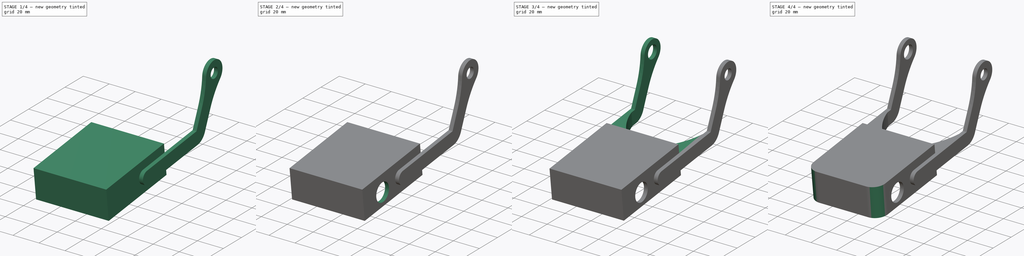
[diagram: build sequence overview — one tinted view per stage of 4, left to right]
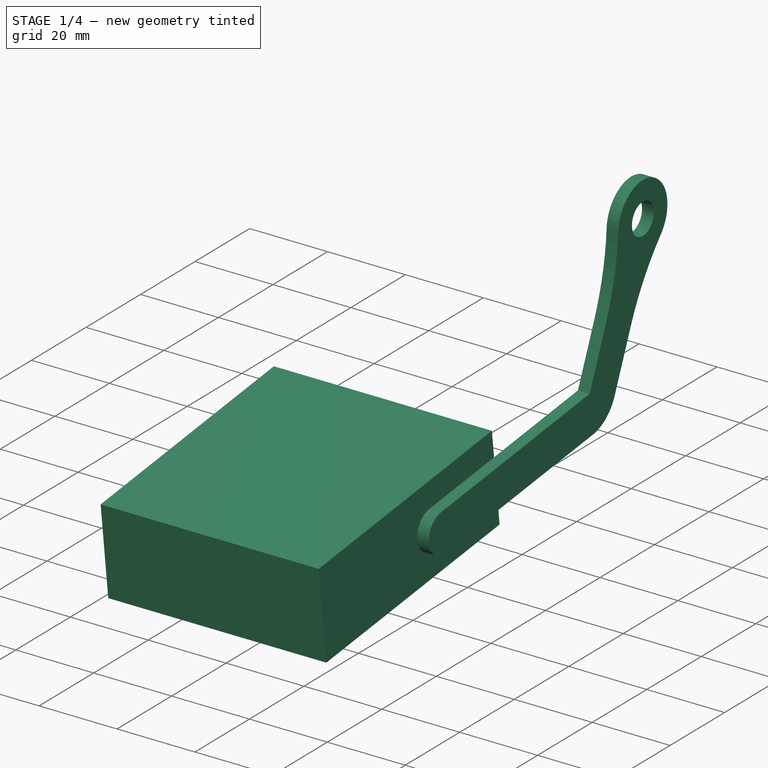
[diagram: stage 1 of 4 — iso view after this stage's code; geometry added in this stage tinted green]
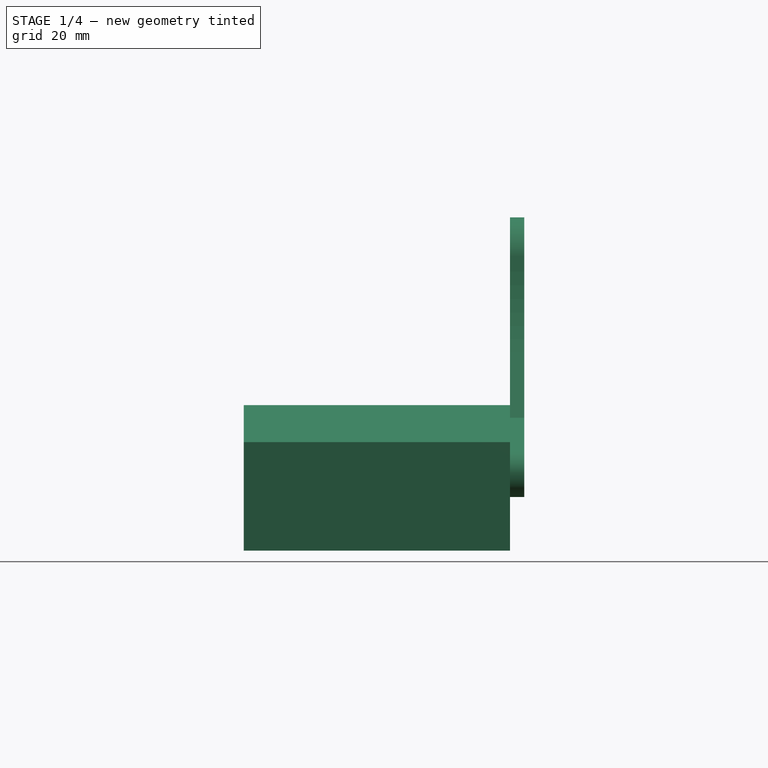
[diagram: stage 1 of 4 — front view after this stage's code; geometry added in this stage tinted green]
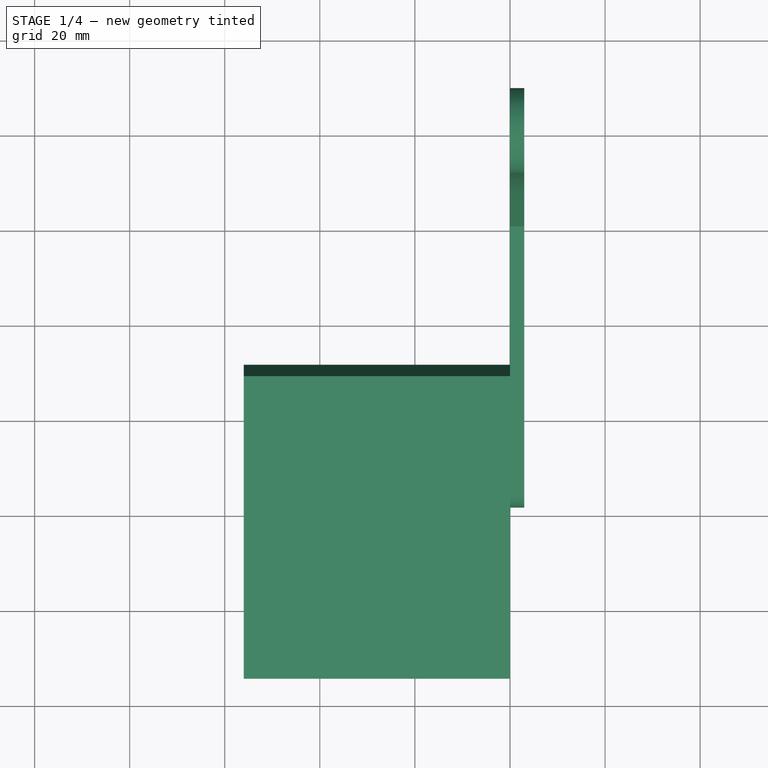
[diagram: stage 1 of 4 — top view after this stage's code; geometry added in this stage tinted green]
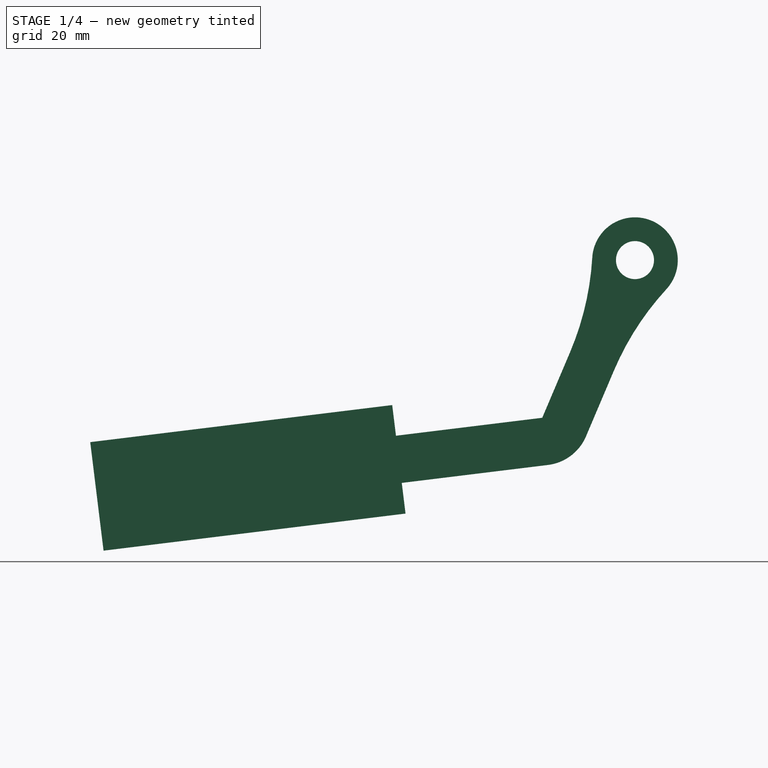
[diagram: stage 1 of 4 — right view after this stage's code; geometry added in this stage tinted green]
FCSTD DOCUMENT  (FreeCAD 0.18R4 (GitTag))
Label: Plecho
License: All rights reserved
LicenseURL: http://en.wikipedia.org/wiki/All_rights_reserved
objects: Sketcher::SketchObject×8, PartDesign::Pad×5, PartDesign::Pocket×3, PartDesign::Fillet×2, PartDesign::Body×1
note: 27 computed .brp shape members not serialized (recipe doc carries the construction recipe); baked Part::Feature solids carry a one-line shape summary decoded from their .brp

FEATURE [Sketcher::SketchObject] Sketch019
  MapMode = 5
  Placement = pos=(-56,7.5e-14,-5e-14) rot=(0.57735,0.57735,-0.57735;4.18879rad)
  sketch-geometry (13):
    g0: ArcOfCircle CenterX=0 CenterY=0 CenterZ=0 NormalX=0 NormalY=0 NormalZ=1 AngleXU=0 Radius=9 StartAngle=3.20085 EndAngle=7.02678
    g1: Circle CenterX=0 CenterY=0 CenterZ=0 NormalX=0 NormalY=0 NormalZ=1 AngleXU=0 Radius=5
    g2: LineSegment StartX=-13.6486 StartY=19.3576 StartZ=0 EndX=-19.5096 EndY=33.1651 EndZ=0
    g3: LineSegment StartX=-4.44356 StartY=23.2649 StartZ=0 EndX=-10.3045 EndY=37.0725 EndZ=0
    g4: ArcOfCircle CenterX=-68.8789 CenterY=-4.0863 CenterZ=0 NormalX=0 NormalY=0 NormalZ=1 AngleXU=0 Radius=60 StartAngle=0.0592563 EndAngle=0.401426
    g5: ArcOfCircle CenterX=50.7867 CenterY=46.7088 CenterZ=0 NormalX=0 NormalY=0 NormalZ=1 AngleXU=0 Radius=60 StartAngle=3.54302 EndAngle=3.88519
    g6: ArcOfCircle CenterX=-19.5096 CenterY=33.1651 CenterZ=0 NormalX=0 NormalY=0 NormalZ=1 AngleXU=0 Radius=10 StartAngle=0.401426 EndAngle=1.44862
    g7: LineSegment StartX=-19.5096 StartY=33.1651 StartZ=0 EndX=-74.0996 EndY=39.868 EndZ=0
    g8: LineSegment StartX=-18.2909 StartY=43.0906 StartZ=0 EndX=-72.8809 EndY=49.7934 EndZ=0
    g9: ArcOfCircle CenterX=-73.4903 CenterY=44.8307 CenterZ=0 NormalX=0 NormalY=0 NormalZ=1 AngleXU=0 Radius=5 StartAngle=1.44862 EndAngle=4.59022
    g10: LineSegment [constr] StartX=-10.3045 StartY=37.0725 StartZ=0 EndX=-19.5096 EndY=33.1651 EndZ=0
    g11: LineSegment [constr] StartX=-4.44356 StartY=23.2649 StartZ=0 EndX=-13.6486 EndY=19.3576 EndZ=0
    g12: LineSegment [constr] StartX=-72.8809 StartY=49.7934 StartZ=0 EndX=-74.0996 EndY=39.868 EndZ=0
  constraints (30):
    c: Coincident(g0,g-1)
    c: Radius(g0) = 9
    c: Radius(g1) = 5
    c: Coincident(g1,g0)
    c: Coincident(g6,g2)
    c: Coincident(g7,g2)
    c: Tangent(g9,g8) = -1.5708
    c: Tangent(g9,g7) = 1.5708
    c: Tangent(g8,g6) = -1.5708
    c: Tangent(g6,g3) = -1.5708
    c: Radius(g6) = 10
    c: Radius(g5) = 60
    c: Radius(g4) = 60
    c: Coincident(g11,g2)
    c: Coincident(g11,g3)
    c: Coincident(g10,g2)
    c: Coincident(g10,g3)
    c: Parallel(g11,g10)
    c: Parallel(g3,g2)
    c: Distance(g2) = 15
    c: Tangent(g4,g2) = -1.5708
    c: Tangent(g5,g3) = 1.5708
    c: Tangent(g0,g4) = 1.5708
    c: Tangent(g0,g5) = 1.5708
    c: Angle(g3,g-2) = 2.74017
    c: Coincident(g12,g8)
    c: Coincident(g12,g7)
    c: PointOnObject(g9,g12)
    c: Angle(g7,g2) = 2.0944
    c: Distance(g7) = 55
FEATURE [Sketcher::SketchObject] Sketch012
  MapMode = 5
  Placement = pos=(0,0,0) rot=(0.57735,0.57735,0.57735;2.0944rad)
  Support = -> [YZ_Plane004]
  sketch-geometry (14):
    g0: LineSegment StartX=-13.6486 StartY=-19.3576 StartZ=0 EndX=-19.5096 EndY=-33.1651 EndZ=0
    g1: LineSegment [constr] StartX=-19.5096 StartY=-33.1651 StartZ=0 EndX=-10.3045 EndY=-37.0725 EndZ=0
    g2: LineSegment StartX=-10.3045 StartY=-37.0725 StartZ=0 EndX=-4.44356 EndY=-23.2649 EndZ=0
    g3: ArcOfCircle CenterX=0 CenterY=0 CenterZ=0 NormalX=0 NormalY=0 NormalZ=1 AngleXU=0 Radius=9 StartAngle=5.53959 EndAngle=9.36552
    g4: Circle CenterX=0 CenterY=0 CenterZ=0 NormalX=0 NormalY=0 NormalZ=1 AngleXU=0 Radius=4
    g5: ArcOfCircle CenterX=50.7867 CenterY=-46.7088 CenterZ=0 NormalX=0 NormalY=0 NormalZ=1 AngleXU=0 Radius=60 StartAngle=2.398 EndAngle=2.74017
    g6: ArcOfCircle CenterX=-68.8789 CenterY=4.0863 CenterZ=0 NormalX=0 NormalY=0 NormalZ=1 AngleXU=0 Radius=60 StartAngle=5.88176 EndAngle=6.22393
    g7: LineSegment [constr] StartX=-4.44356 StartY=-23.2649 StartZ=0 EndX=-13.6486 EndY=-19.3576 EndZ=0
    g8: LineSegment StartX=-19.5096 StartY=-33.1651 StartZ=0 EndX=-74.0996 EndY=-39.868 EndZ=0
    g9: LineSegment StartX=-72.8809 StartY=-49.7934 StartZ=0 EndX=-18.2909 EndY=-43.0906 EndZ=0
    g10: LineSegment [constr] StartX=-18.2909 StartY=-43.0906 StartZ=0 EndX=-19.5096 EndY=-33.1651 EndZ=0
    g11: ArcOfCircle CenterX=-19.5096 CenterY=-33.1651 CenterZ=0 NormalX=0 NormalY=0 NormalZ=1 AngleXU=0 Radius=10 StartAngle=4.83456 EndAngle=5.88176
    g12: ArcOfCircle CenterX=-73.4903 CenterY=-44.8307 CenterZ=0 NormalX=0 NormalY=0 NormalZ=1 AngleXU=0 Radius=5 StartAngle=1.69297 EndAngle=4.83456
    g13: LineSegment [constr] StartX=-74.0996 StartY=-39.868 StartZ=0 EndX=-72.8809 EndY=-49.7934 EndZ=0
  constraints (35):
    c: Coincident(g0,g1)
    c: Coincident(g1,g2)
    c: Radius(g3) = 9
    c: Distance(g1,g0) = 10
    c: Perpendicular(g1,g2)
    c: Perpendicular(g1,g0)
    c: Coincident(g4,g3)
    c: Radius(g4) = 4
    c: Tangent(g3,g5) = 1.5708
    c: Tangent(g2,g5) = 1.5708
    c: Tangent(g3,g6) = 1.5708
    c: Tangent(g0,g6) = 1.5708
    c: Radius(g6) = 60
    c: Radius(g5) = 60
    c: Coincident(g7,g2)
    c: Coincident(g7,g0)
    c: Parallel(g7,g1)
    c: Coincident(g9,g10)
    c: Coincident(g10,g8)
    c: Equal(g8,g9)
    c: Perpendicular(g9,g10)
    c: Coincident(g8,g0)
    c: Angle(g0,g8) = 2.0944
    c: Distance(g2,g1) = 15
    c: Coincident(g11,g0)
    c: Coincident(g11,g1)
    c: Coincident(g11,g9)
    c: Angle(g0,g-2) = 0.401426
    c: Radius(g12) = 5
    c: Coincident(g13,g9)
    c: Coincident(g12,g9)
    c: Tangent(g8,g12) = -1.5708
    c: Coincident(g13,g8)
    c: Distance(g9,g9) = 55
    c: Coincident(g-1,g3)
FEATURE [PartDesign::Pad] Pad005
  Length = 3
  Length2 = 100
  Placement = pos=(0,0,0) rot=(0.57735,0.57735,0.57735;2.0944rad)
  Profile = -> Sketch012
  Type = 0
FEATURE [Sketcher::SketchObject] Sketch013
  ExternalGeometry = -> [Pad005]
  MapMode = 5
  Placement = pos=(0,0,0) rot=(0.57735,0.57735,-0.57735;4.18879rad)
  Support = -> [Pad005]
  sketch-geometry (4):
    g0: LineSegment StartX=-111.791 StartY=61.1197 StartZ=0 EndX=-48.2677 EndY=53.3201 EndZ=0
    g1: LineSegment StartX=-48.2677 StartY=53.3201 StartZ=0 EndX=-51.0707 EndY=30.4915 EndZ=0
    g2: LineSegment StartX=-51.0707 StartY=30.4915 StartZ=0 EndX=-114.594 EndY=38.2912 EndZ=0
    g3: LineSegment StartX=-114.594 StartY=38.2912 StartZ=0 EndX=-111.791 EndY=61.1197 EndZ=0
  constraints (12):
    c: Coincident(g0,g1)
    c: Coincident(g1,g2)
    c: Coincident(g2,g3)
    c: Coincident(g3,g0)
    c: Perpendicular(g1,g0)
    c: Distance(g1) = 23
    c: Equal(g1,g3)
    c: Equal(g0,g2)
    c: Distance(g2) = 64
    c: Parallel(g2,g-4)
    c: Distance(g1,g-4) = 6.5
    c: Distance(g-4,g3) = 40
FEATURE [PartDesign::Pad] Pad006
  BaseFeature = -> Pad005
  Length = 56
  Length2 = 100
  Placement = pos=(0,0,0) rot=(0.57735,0.57735,0.57735;2.0944rad)
  Profile = -> Sketch013
  Type = 0
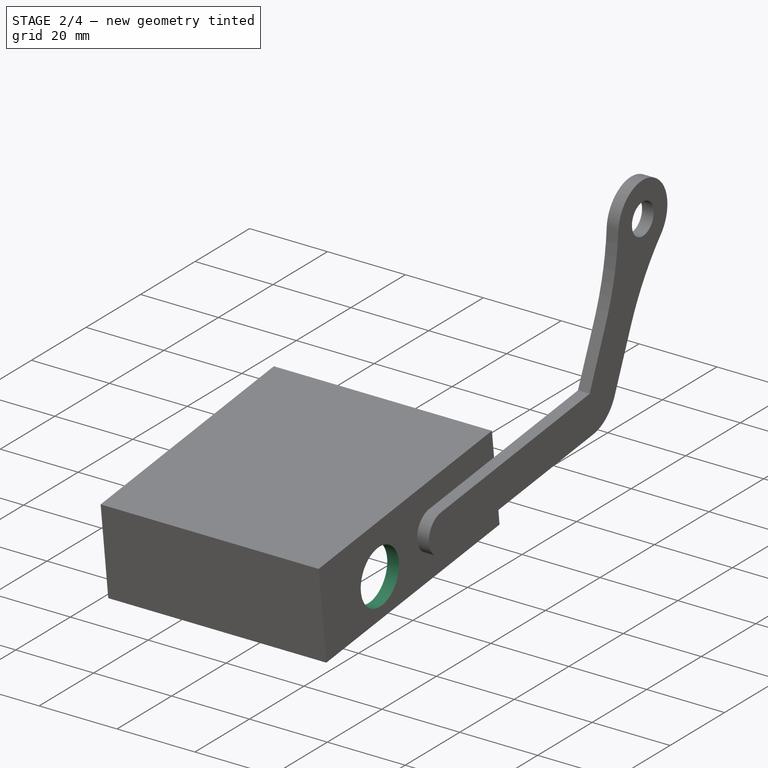
[diagram: stage 2 of 4 — iso view after this stage's code; geometry added in this stage tinted green]
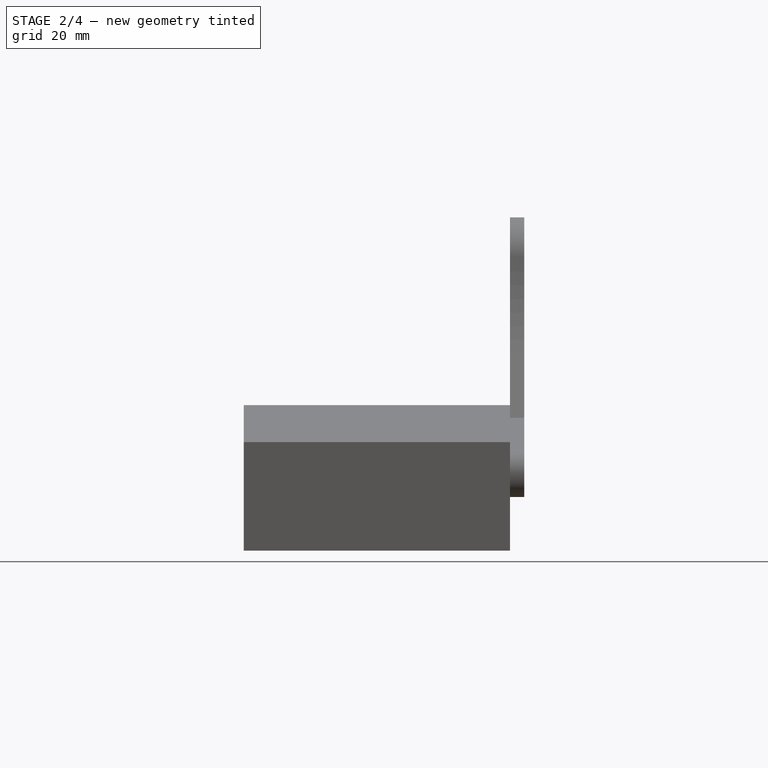
[diagram: stage 2 of 4 — front view after this stage's code; geometry added in this stage tinted green]
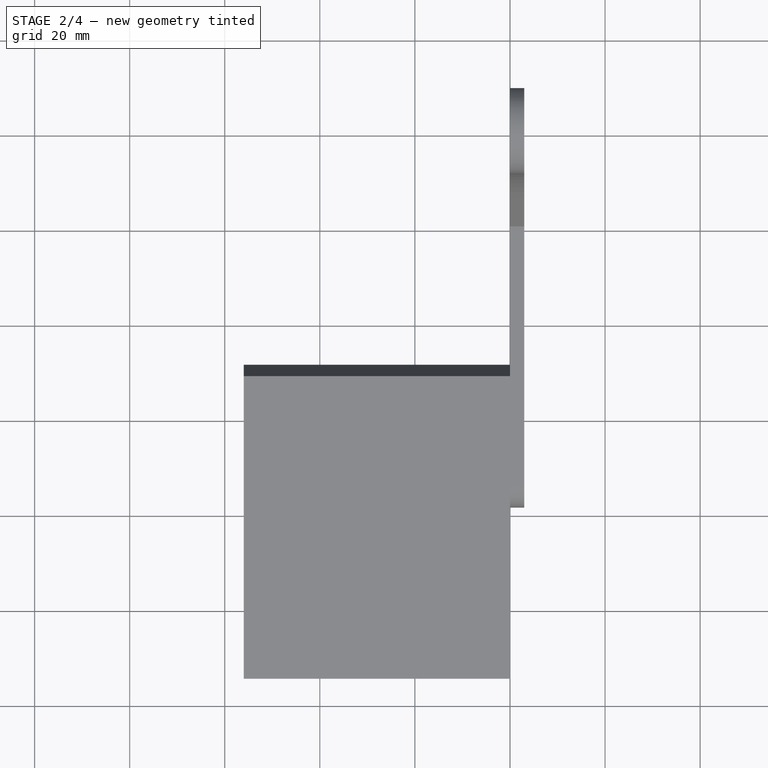
[diagram: stage 2 of 4 — top view after this stage's code; geometry added in this stage tinted green]
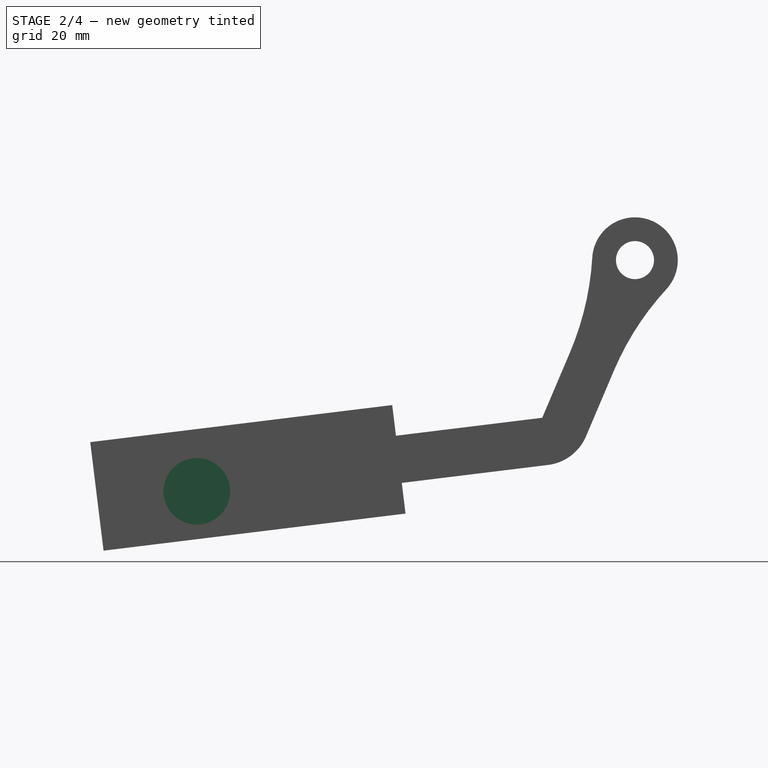
[diagram: stage 2 of 4 — right view after this stage's code; geometry added in this stage tinted green]
FEATURE [Sketcher::SketchObject] Sketch015
  ExternalGeometry = -> [Pad006]
  MapMode = 5
  Placement = pos=(2.45e-14,5.73277,-46.6897) rot=(0.706446,0.706446,0.043208;3.22796rad)
  Support = -> [Pad006]
  sketch-geometry (12):
    g0: LineSegment StartX=-115.406 StartY=-3 StartZ=0 EndX=-57.406 EndY=-3 EndZ=0
    g1: LineSegment StartX=-57.406 StartY=-3 StartZ=0 EndX=-57.406 EndY=-10 EndZ=0
    g2: LineSegment StartX=-57.406 StartY=-53 StartZ=0 EndX=-115.406 EndY=-53 EndZ=0
    g3: LineSegment StartX=-115.406 StartY=-53 StartZ=0 EndX=-115.406 EndY=-13 EndZ=0
    g4: LineSegment StartX=-115.406 StartY=-10 StartZ=0 EndX=-107.606 EndY=-10 EndZ=0
    g5: LineSegment StartX=-107.606 StartY=-10 StartZ=0 EndX=-107.606 EndY=-13 EndZ=0
    g6: LineSegment StartX=-107.606 StartY=-13 StartZ=0 EndX=-115.406 EndY=-13 EndZ=0
    g7: LineSegment StartX=-66.406 StartY=-10 StartZ=0 EndX=-57.406 EndY=-10 EndZ=0
    g8: LineSegment StartX=-57.406 StartY=-13 StartZ=0 EndX=-66.406 EndY=-13 EndZ=0
    g9: LineSegment StartX=-66.406 StartY=-13 StartZ=0 EndX=-66.406 EndY=-10 EndZ=0
    g10: LineSegment StartX=-57.406 StartY=-13 StartZ=0 EndX=-57.406 EndY=-53 EndZ=0
    g11: LineSegment StartX=-115.406 StartY=-10 StartZ=0 EndX=-115.406 EndY=-3 EndZ=0
  constraints (34):
    c: Coincident(g10,g2)
    c: Coincident(g2,g3)
    c: Coincident(g11,g0)
    c: Horizontal(g0)
    c: Horizontal(g2)
    c: Vertical(g1)
    c: Vertical(g3)
    c: DistanceX(g-3,g0) = 3
    c: DistanceY(g0,g-3) = 3
    c: DistanceX(g10,g-4) = 3
    c: DistanceY(g-4,g10) = 3
    c: Coincident(g0,g1)
    c: Coincident(g4,g5)
    c: Coincident(g5,g6)
    c: Horizontal(g4)
    c: Horizontal(g6)
    c: Vertical(g5)
    c: Coincident(g8,g9)
    c: Coincident(g9,g7)
    c: Horizontal(g7)
    c: Horizontal(g8)
    c: Vertical(g9)
    c: Coincident(g1,g7)
    c: Tangent(g1,g10)
    c: Coincident(g8,g10)
    c: DistanceY(g9,g9) = 3
    c: DistanceX(g7,g7) = 9
    c: DistanceY(g5,g5) = 3
    c: Coincident(g11,g4)
    c: Tangent(g3,g11)
    c: Coincident(g3,g6)
    c: DistanceX(g4,g4) = 7.8
    c: DistanceY(g3,g0) = 10
    c: DistanceY(g8,g0) = 10
FEATURE [PartDesign::Pocket] Pocket007
  BaseFeature = -> Pad006
  Length = 20
  Length2 = 100
  Placement = pos=(0,0,0) rot=(0.57735,0.57735,0.57735;2.0944rad)
  Profile = -> Sketch015
  Type = 0
FEATURE [Sketcher::SketchObject] Sketch016
  ExternalGeometry = -> [Pocket007]
  MapMode = 5
  Placement = pos=(1.27e-14,0,0) rot=(0.57735,0.57735,0.57735;2.0944rad)
  Support = -> [Pocket007]
  sketch-geometry (1):
    g0: Circle CenterX=-92.1658 CenterY=-48.635 CenterZ=0 NormalX=0 NormalY=0 NormalZ=1 AngleXU=0 Radius=7
  constraints (3):
    c: Distance(g0,g-4) = 21
    c: Distance(g0,g-3) = 10
    c: Radius(g0) = 7
FEATURE [PartDesign::Pocket] Pocket008
  BaseFeature = -> Pocket007
  Length = 3
  Length2 = 100
  Placement = pos=(0,0,0) rot=(0.57735,0.57735,0.57735;2.0944rad)
  Profile = -> Sketch016
  Type = 0
FEATURE [Sketcher::SketchObject] Sketch018
  ExternalGeometry = -> [Pocket008]
  MapMode = 5
  Placement = pos=(-13,7e-15,-1.5e-14) rot=(0.57735,0.57735,-0.57735;4.18879rad)
  sketch-geometry (4):
    g0: Circle CenterX=-57.4789 CenterY=39.8422 CenterZ=0 NormalX=0 NormalY=0 NormalZ=1 AngleXU=0 Radius=2.1
    g1: Circle CenterX=-56.382 CenterY=48.7751 CenterZ=0 NormalX=0 NormalY=0 NormalZ=1 AngleXU=0 Radius=2.1
    g2: Circle CenterX=-107.404 CenterY=45.9722 CenterZ=0 NormalX=0 NormalY=0 NormalZ=1 AngleXU=0 Radius=2.1
    g3: Circle CenterX=-106.307 CenterY=54.9052 CenterZ=0 NormalX=0 NormalY=0 NormalZ=1 AngleXU=0 Radius=2.1
  constraints (12):
    c: Radius(g3) = 2.1
    c: Radius(g2) = 2.1
    c: Radius(g0) = 2.1
    c: Radius(g1) = 2.1
    c: Distance(g0,g2) = 50.3
    c: Distance(g3,g1) = 50.3
    c: Distance(g1,g-5) = 5.5
    c: Distance(g0,g-5) = 14.5
    c: Distance(g3,g-5) = 5.5
    c: Distance(g2,g-5) = 14.5
    c: Distance(g1,g-3) = 4.5
    c: Distance(g0,g-3) = 4.5
FEATURE [PartDesign::Pocket] Pocket010
  BaseFeature = -> Pocket008
  Length = 3
  Length2 = 100
  Placement = pos=(0,0,0) rot=(0.57735,0.57735,0.57735;2.0944rad)
  Profile = -> Sketch018
  Type = 0
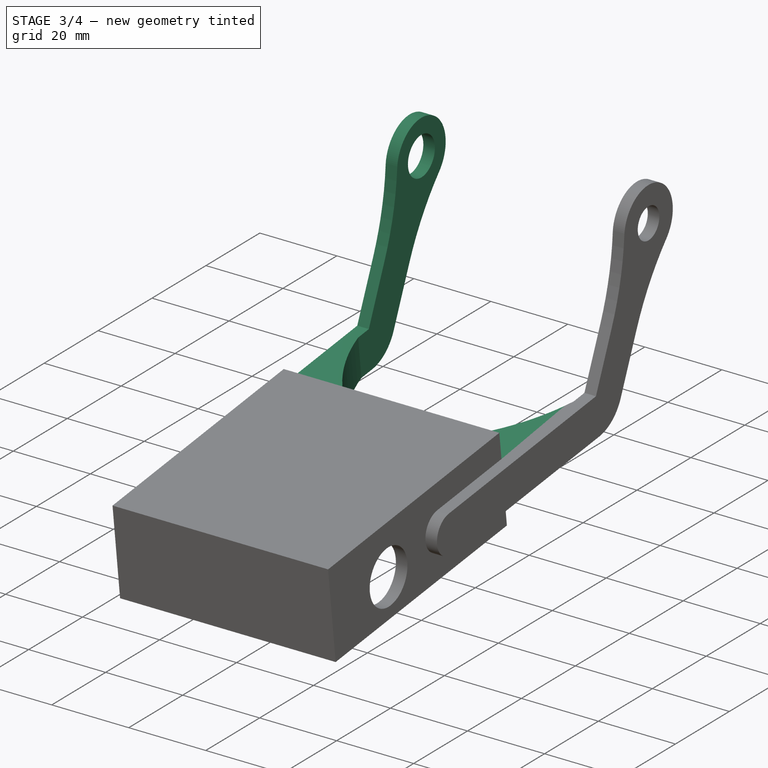
[diagram: stage 3 of 4 — iso view after this stage's code; geometry added in this stage tinted green]
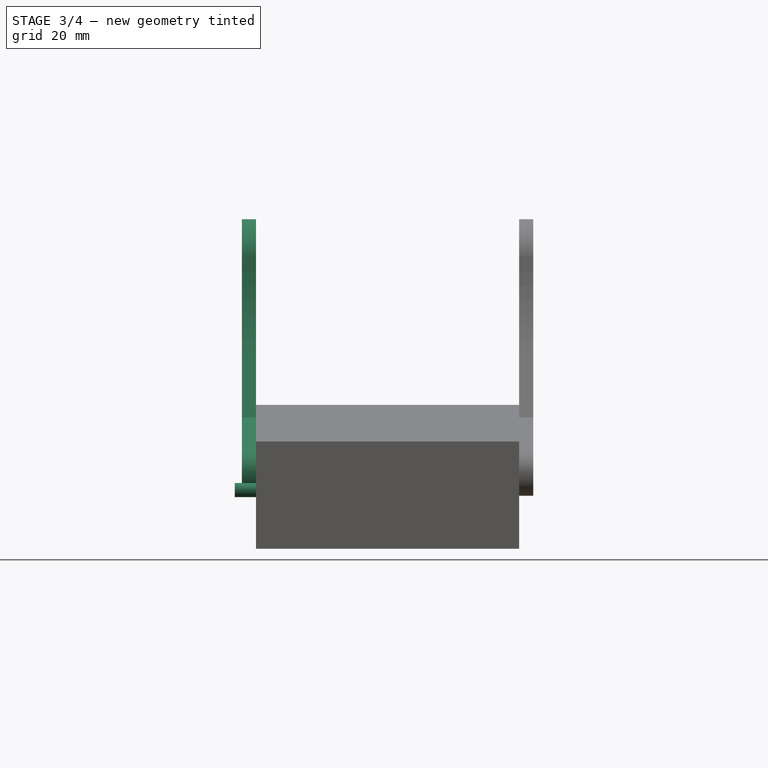
[diagram: stage 3 of 4 — front view after this stage's code; geometry added in this stage tinted green]
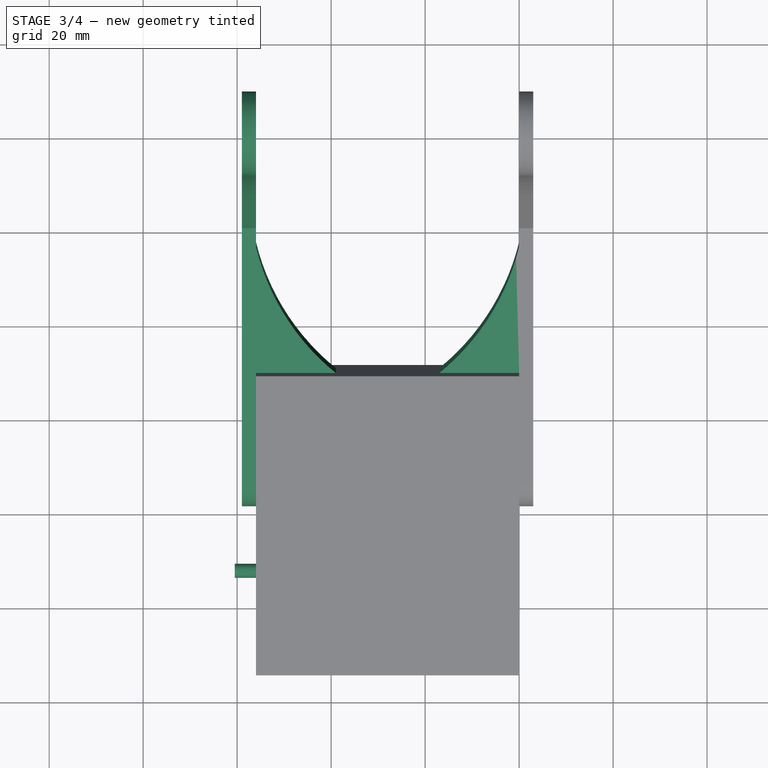
[diagram: stage 3 of 4 — top view after this stage's code; geometry added in this stage tinted green]
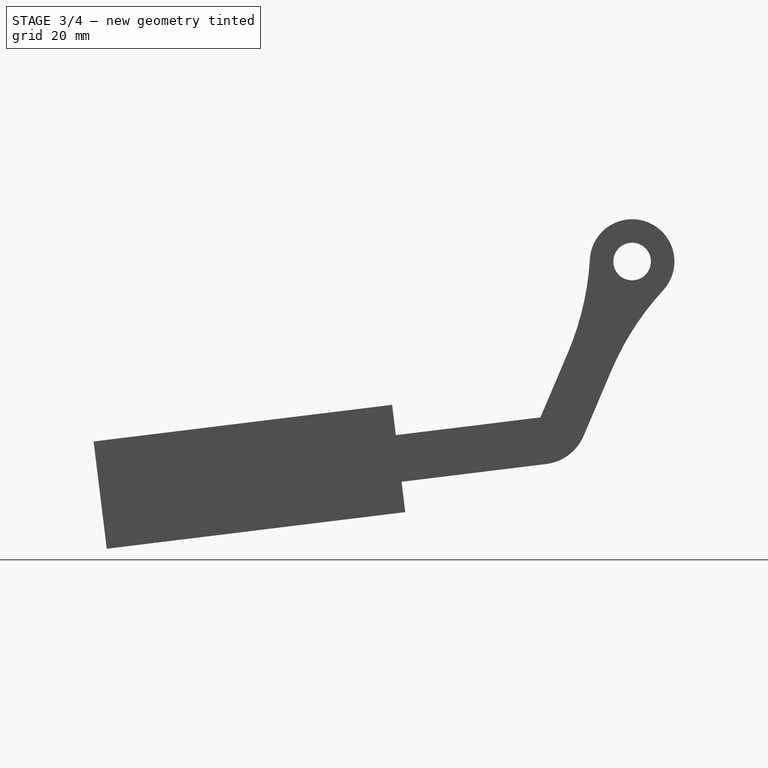
[diagram: stage 3 of 4 — right view after this stage's code; geometry added in this stage tinted green]
FEATURE [PartDesign::Pad] Pad007
  BaseFeature = -> Pocket010
  Length = 3
  Length2 = 100
  Placement = pos=(0,0,0) rot=(0.57735,0.57735,0.57735;2.0944rad)
  Profile = -> Sketch019
  Type = 0
FEATURE [Sketcher::SketchObject] Sketch020
  ExternalGeometry = -> [Pad007]
  MapMode = 5
  Placement = pos=(-56,2.46e-14,-2.46e-14) rot=(0.57735,0.57735,-0.57735;4.18879rad)
  Support = -> [Pad007]
  sketch-geometry (1):
    g0: Circle CenterX=-92.1658 CenterY=48.635 CenterZ=0 NormalX=0 NormalY=0 NormalZ=1 AngleXU=0 Radius=1.5
  constraints (2):
    c: Coincident(g-3,g0)
    c: Radius(g0) = 1.5
FEATURE [PartDesign::Pad] Pad008
  BaseFeature = -> Pad007
  Length = 4.5
  Length2 = 100
  Placement = pos=(0,0,0) rot=(0.57735,0.57735,0.57735;2.0944rad)
  Profile = -> Sketch020
  Type = 0
FEATURE [Sketcher::SketchObject] Sketch021
  ExternalGeometry = -> [Pad008]
  MapMode = 5
  Placement = pos=(1.34e-14,4.94062,-40.2381) rot=(0.706446,0.706446,0.043208;3.22796rad)
  Support = -> [Pad008]
  sketch-geometry (6):
    g0: LineSegment StartX=-27.406 StartY=-2.07e-14 StartZ=0 EndX=-54.406 EndY=-9.6e-15 EndZ=0
    g1: LineSegment StartX=-54.406 StartY=-9.6e-15 StartZ=0 EndX=-54.406 EndY=-17 EndZ=0
    g2: LineSegment StartX=-54.406 StartY=-39 StartZ=0 EndX=-54.406 EndY=-56 EndZ=0
    g3: LineSegment StartX=-27.406 StartY=-56 StartZ=0 EndX=-54.406 EndY=-56 EndZ=0
    g4: ArcOfCircle CenterX=-15.6577 CenterY=-48.6002 CenterZ=0 NormalX=0 NormalY=0 NormalZ=1 AngleXU=0 Radius=50 StartAngle=1.80798 EndAngle=2.45746
    g5: ArcOfCircle CenterX=-15.6577 CenterY=-7.39981 CenterZ=0 NormalX=0 NormalY=0 NormalZ=1 AngleXU=0 Radius=50 StartAngle=3.82573 EndAngle=4.47521
  constraints (18):
    c: Coincident(g3,g2)
    c: Coincident(g2,g-5)
    c: Coincident(g0,g1)
    c: Coincident(g-5,g0)
    c: PointOnObject(g1,g-5)
    c: PointOnObject(g2,g-5)
    c: PointOnObject(g3,g-4)
    c: PointOnObject(g0,g-3)
    c: Distance(g1) = 17
    c: Distance(g2) = 17
    c: Distance(g3) = 27
    c: Distance(g0) = 27
    c: Coincident(g5,g3)
    c: Coincident(g5,g2)
    c: Radius(g5) = 50
    c: Coincident(g4,g1)
    c: Coincident(g4,g0)
    c: Radius(g4) = 50
FEATURE [PartDesign::Pad] Pad009
  BaseFeature = -> Pad008
  Length = 10
  Length2 = 100
  Placement = pos=(0,0,0) rot=(0.57735,0.57735,0.57735;2.0944rad)
  Profile = -> Sketch021
  Reversed = true
  Type = 0
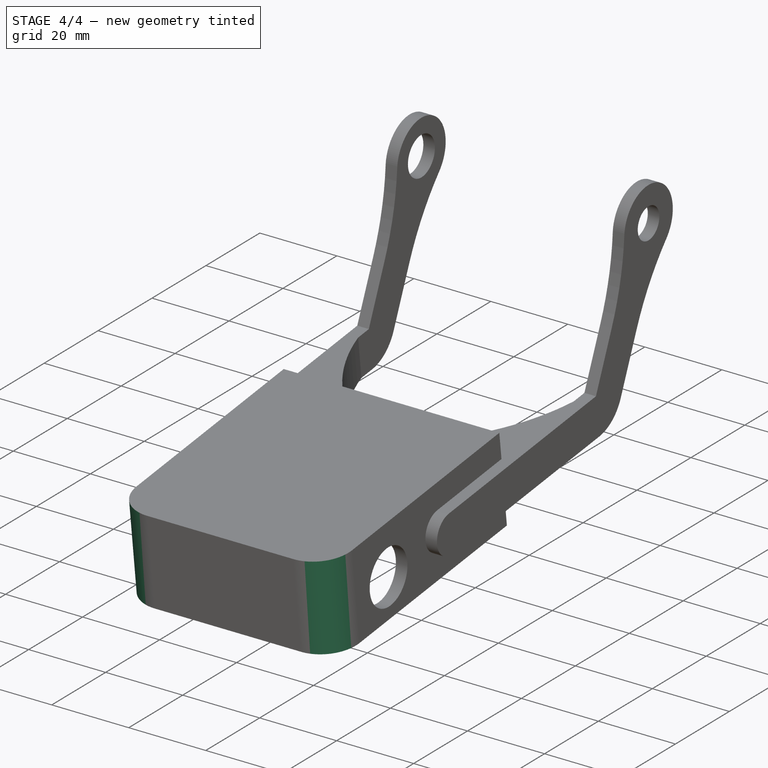
[diagram: stage 4 of 4 — iso view after this stage's code; geometry added in this stage tinted green]
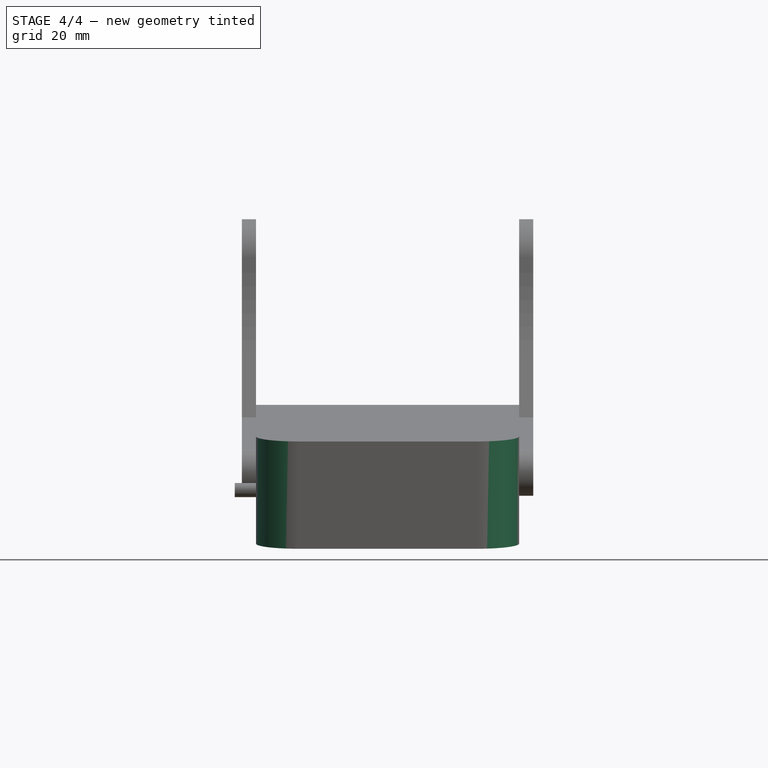
[diagram: stage 4 of 4 — front view after this stage's code; geometry added in this stage tinted green]
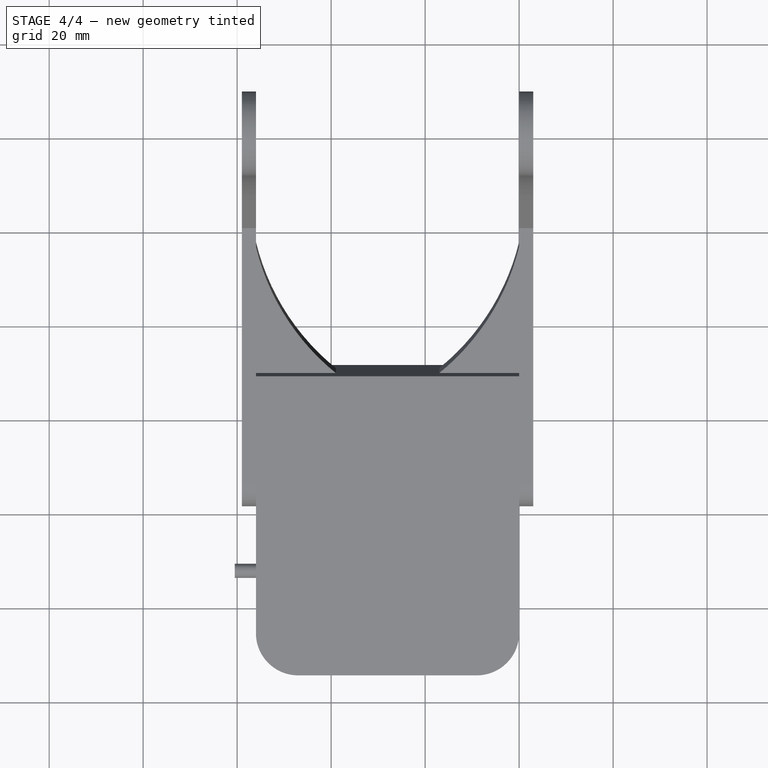
[diagram: stage 4 of 4 — top view after this stage's code; geometry added in this stage tinted green]
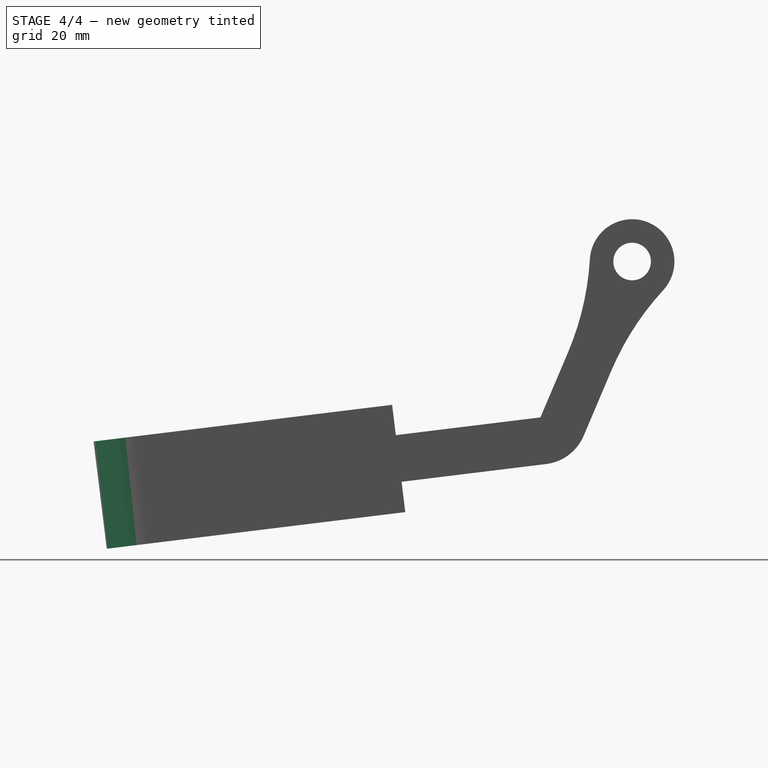
[diagram: stage 4 of 4 — right view after this stage's code; geometry added in this stage tinted green]
FEATURE [PartDesign::Fillet] Fillet
  Base = -> Pad009 [Edge39,Edge56]
  BaseFeature = -> Pad009
  Placement = pos=(0,0,0) rot=(0.57735,0.57735,0.57735;2.0944rad)
  Radius = 9
FEATURE [PartDesign::Fillet] Fillet001
  Base = -> Fillet [Edge79,Edge97]
  BaseFeature = -> Fillet
  Placement = pos=(0,0,0) rot=(0.57735,0.57735,0.57735;2.0944rad)
  Radius = 6
FEATURE [PartDesign::Body] Body004  label="Плечо"
  Group = -> [Sketch012,Pad005,Sketch013,Pad006,Sketch015,Pocket007,Sketch016,Pocket008,Sketch018,Pocket010,Sketch019,Pad007,Sketch020,Pad008,Sketch021,Pad009,Fillet,Fillet001]
  Origin = -> Origin004
  Placement = pos=(28,16.5,-26.5) rot=(1,0,0;6.16101rad)
  Tip = -> Fillet001
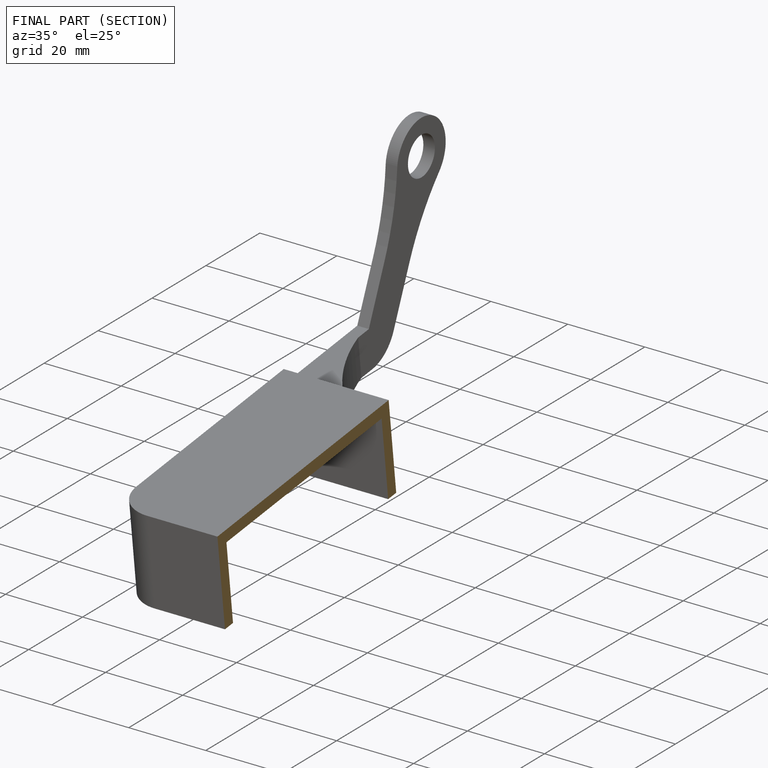
[diagram: finished part — half-section view (interior)]
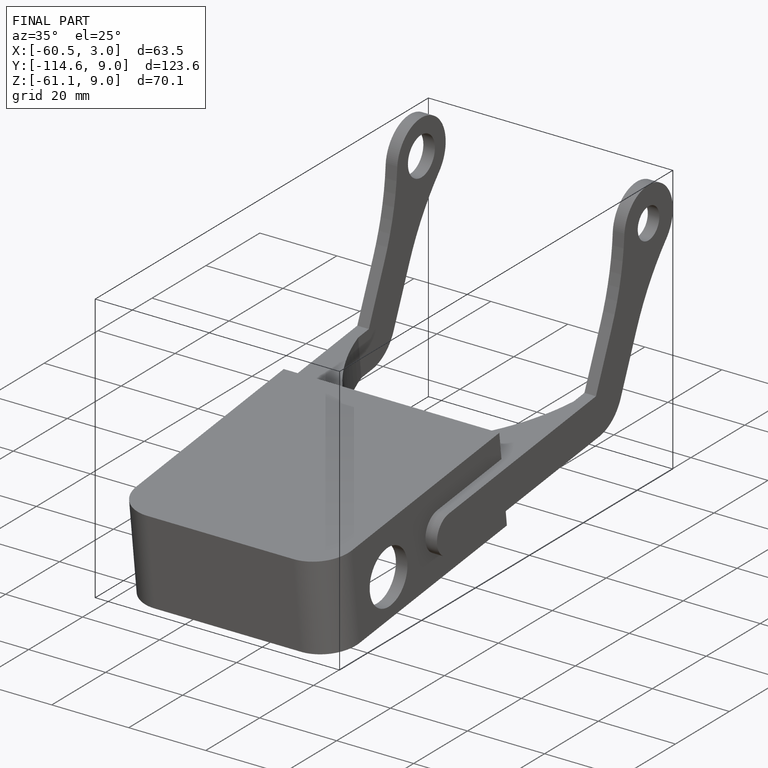
[diagram: finished part — iso view with bounding-box wireframe]
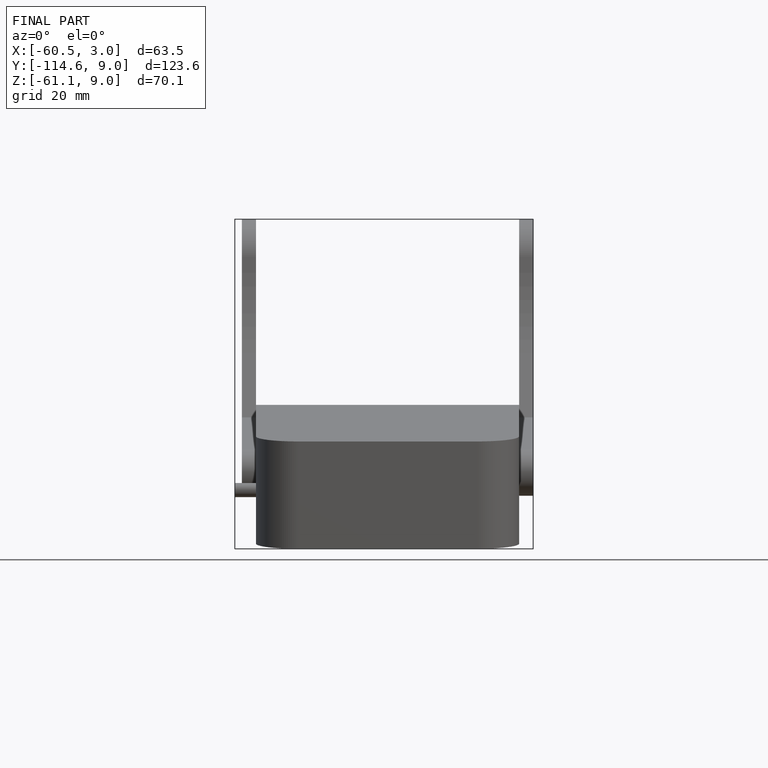
[diagram: finished part — front view with bounding-box wireframe]
